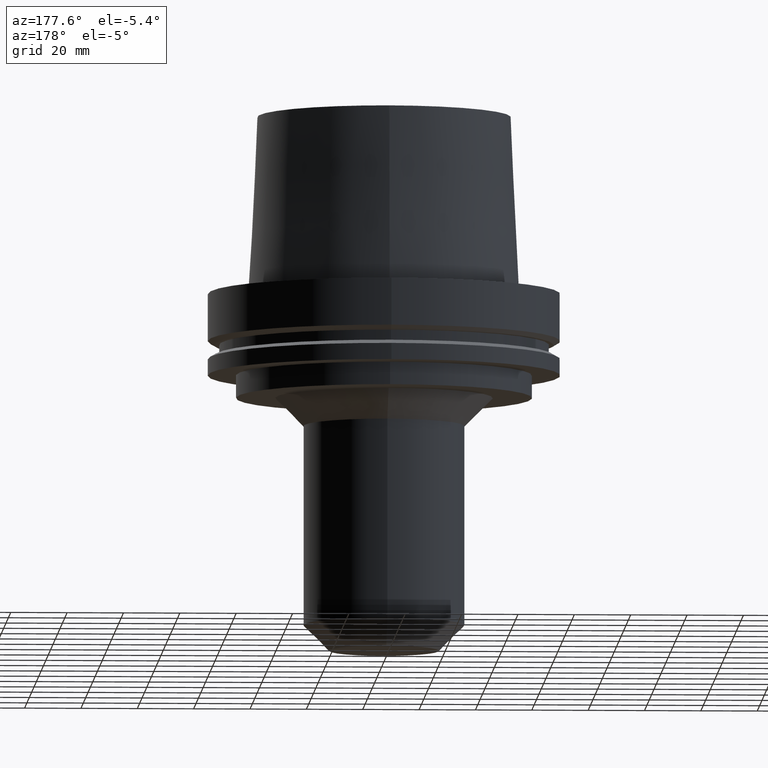
[diagram: clean part render]
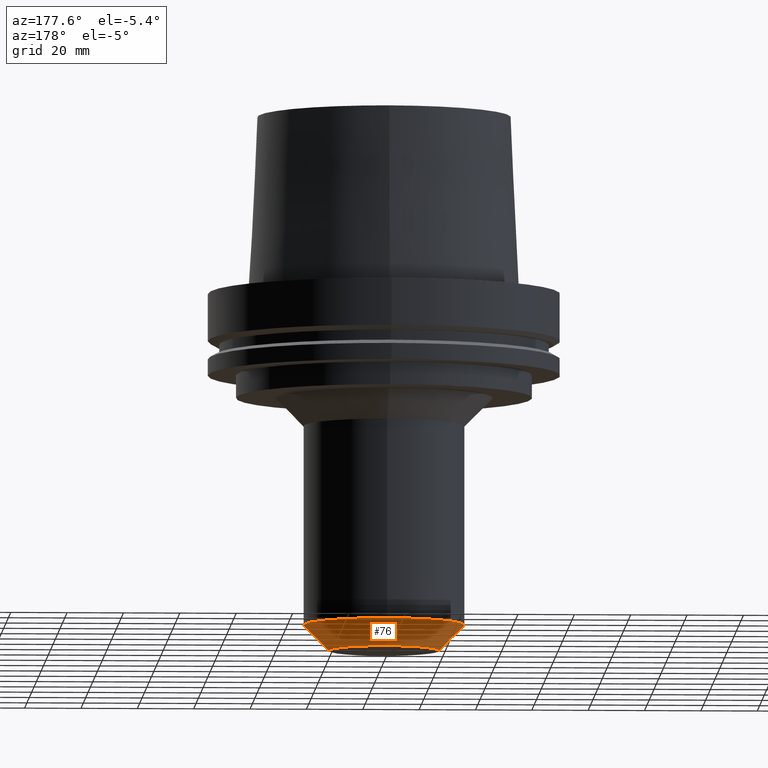
[diagram: same view with one face highlighted and labeled with its STEP entity id]
A machine part, auxiliary view. The second image highlights one B-rep face of the part: STEP entity #76.
In plain terms, the highlighted conical surface has half-angle 45 deg.
Its self-contained STEP definition (entity closure, byte-faithful):
#76=ADVANCED_FACE('Unnamed[1]',(#186,#187),#188,.T.);
#81=EDGE_CURVE('Unnamed[1]',#195,#195,#196,.T.);
#95=EDGE_CURVE('Unnamed[1]',#218,#218,#219,.T.);
#186=FACE_BOUND('',#332,.T.);
#187=FACE_BOUND('',#333,.T.);
#188=CONICAL_SURFACE('',#334,24.0500000000001,0.785398163397455);
#195=VERTEX_POINT('',#343);
#196=CIRCLE('',#344,19.5000000000001);
#218=VERTEX_POINT('',#371);
#219=CIRCLE('',#372,28.6);
#332=EDGE_LOOP('',(#495));
#333=EDGE_LOOP('',(#496));
#334=AXIS2_PLACEMENT_3D('',#497,#498,#499);
#343=CARTESIAN_POINT('',(7.77650717458569E-015,19.5000000000001,-127.0));
#344=AXIS2_PLACEMENT_3D('',#506,#507,#508);
#371=CARTESIAN_POINT('',(7.21929288097366E-015,28.6,-117.9));
#372=AXIS2_PLACEMENT_3D('',#533,#534,#535);
#495=ORIENTED_EDGE('',*,*,#81,.F.);
#496=ORIENTED_EDGE('',*,*,#95,.T.);
#497=CARTESIAN_POINT('',(7.49790002777968E-015,1.49958000555593E-014,-122.45));
#498=DIRECTION('',(-6.12323399573677E-017,-1.22464679914718E-016,1.0));
#499=DIRECTION('',(-1.23259516440798E-032,1.0,1.22464679914719E-016));
#506=CARTESIAN_POINT('',(7.77650717458569E-015,1.55530143491714E-014,-127.0));
#507=DIRECTION('',(6.12323399573677E-017,1.22464679914734E-016,-1.0));
#508=DIRECTION('',(-1.23259516440782E-032,1.0,1.22464679914734E-016));
#533=CARTESIAN_POINT('',(7.21929288097366E-015,1.44385857619473E-014,-117.9));
#534=DIRECTION('',(6.12323399573677E-017,1.22464679914765E-016,-1.0));
#535=DIRECTION('',(-1.23259516440808E-032,1.0,1.22464679914765E-016));